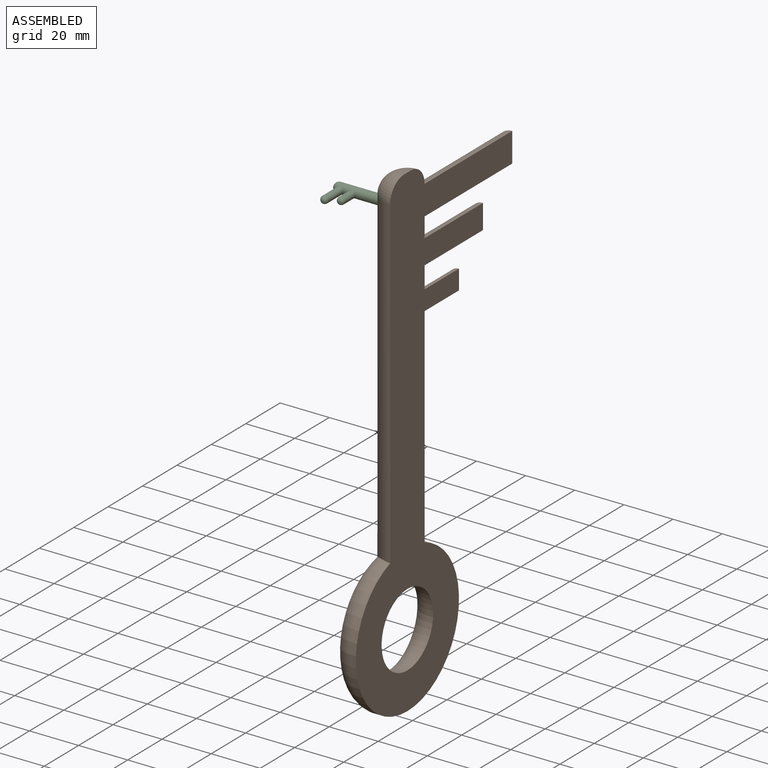
[diagram: assembled view]
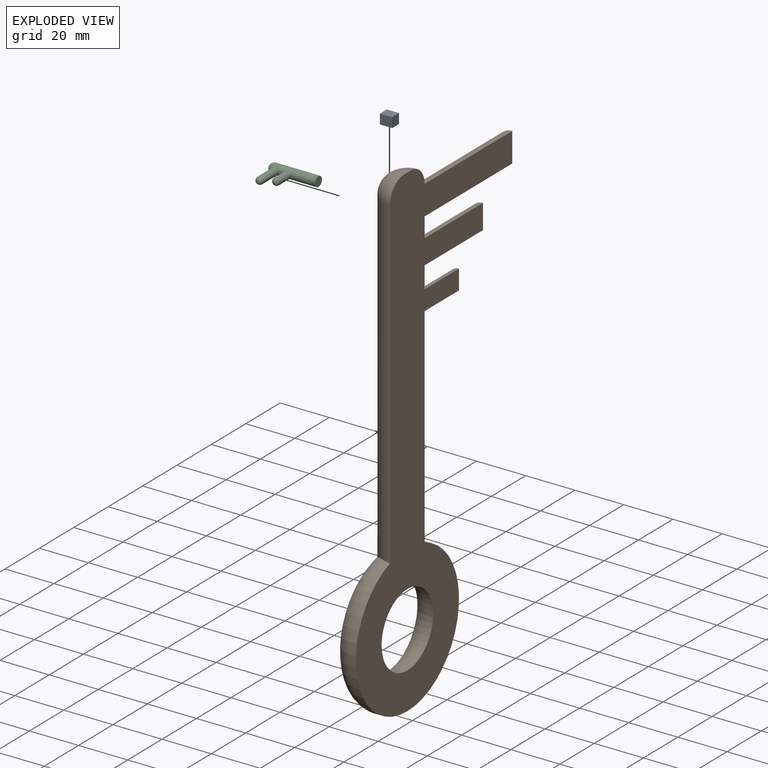
[diagram: exploded view]
GUIDED TOUR — MATED ASSEMBLY (Onshape document ddc536375253743c1de6924a, AutoMate assembly ddc536375253743c1de6924a_2603a5de249c5861ef21973a_51d18c4f5379fd14a775a0b7_default)

This assembly has 3 components, labeled P0..P2 below (a component is one placed occurrence of a part; the same part can appear more than once), held together by 2 mates. A mate is a constraint between two components; its type names the relative motion it leaves free:
  FASTENED — locks the two components together rigidly (no relative motion).
Axis/direction vectors are unit vectors and 'through' points are millimeter coordinates, both in the assembly's world frame.

MATES
  1. FASTENED "Fastened 2": P1 <-> P0, direction (-1.000, 0.000, 0.000) through (75.43, -0.76, 44.51) mm
  2. FASTENED "Fastened 1": P2 <-> P0, direction (1.000, 0.000, 0.000) through (68.63, -0.76, 44.51) mm

ASSEMBLY ORDER
  1. P1 — the base component [order verified]
  2. P0 [order verified]
  3. P2 [order verified]
Order-tag legend:
  [order verified] — this step's position reverses a verified removal order: the component was checked to insert without passing through the ones already placed.

Of the 3 components, 1 carries the full construction recipe — the FeatureScript program that regenerates the part's solid from scratch; the rest are supplied as boundary geometry only.
Each toured component is shown spotlighted twice — in the assembled view, then in the exploded view, where a leader line traces a displaced component back to its assembled socket (saturated green if recipe-attached, orange if geometry-only; every other component desaturated gray) — followed by its recipe or geometry summary and the mates that hold it.
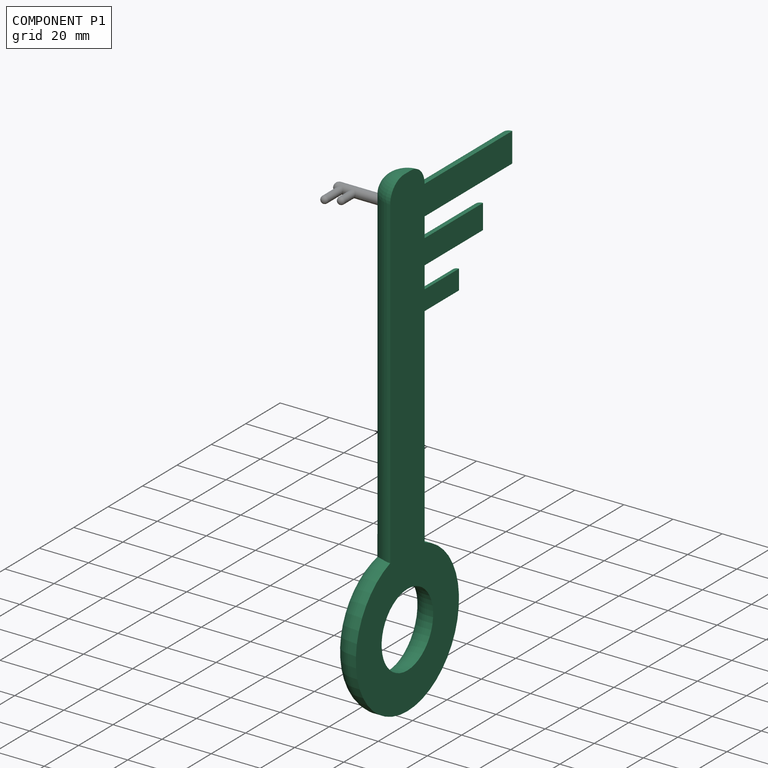
[diagram: component P1 — assembled]
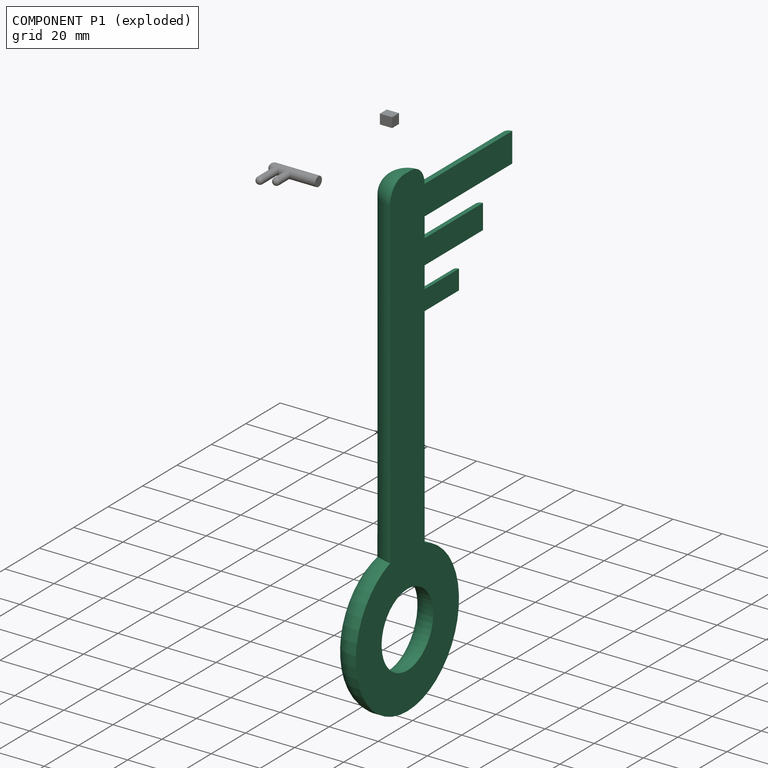
[diagram: component P1 — exploded]
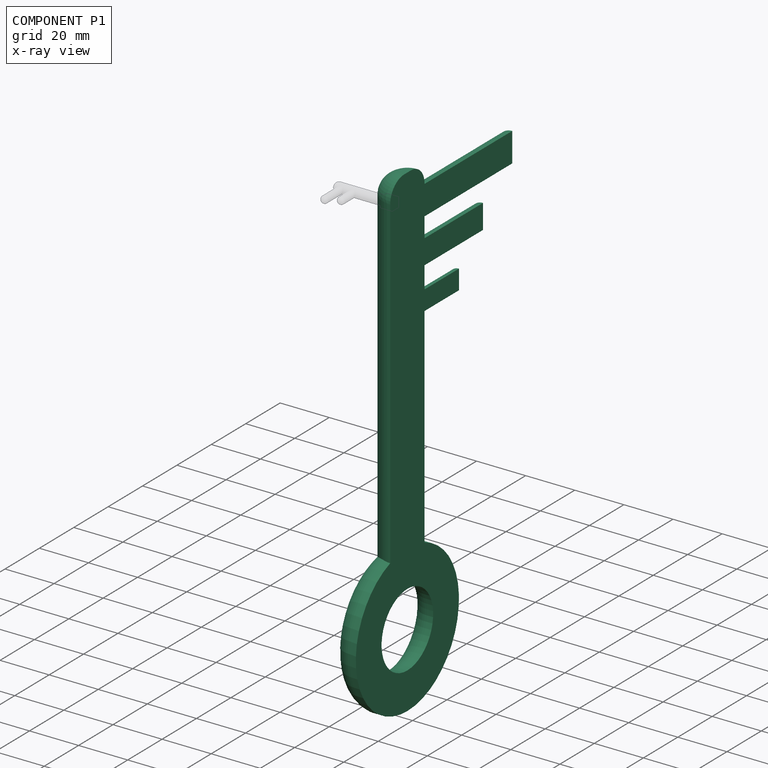
[diagram: component P1 — x-ray view]
COMPONENT P1 — recipe-attached (CADFS 00140303, mesh-verified: the recipe's output STEP matches this component's geometry to below the mesh-comparison resolution (tessellation chordal tolerance ~0.328 mm)).
Held by: FASTENED mate "Fastened 2" to P0.
Construction recipe (FeatureScript — the CAD program that rebuilds this solid; sketch coordinates are in the units given by the * unit suffixes, e.g. mm):

FeatureScript 1717;
import(path : "onshape/std/geometry.fs", version : "1717.0");
import(path : "onshape/std/common.fs", version : "1717.0");
const mm = millimeter;
const VERTEX = EntityType.VERTEX;
const EDGE = EntityType.EDGE;
const FACE = EntityType.FACE;
const BODY = EntityType.BODY;
function v(x, y){return vector(x, y);}
function OD(order){return orderDisambiguation(order);}
function OSD(set){return originalSetDisambiguation(set);}
function TD(topology){return topologyDisambiguation(topology);}
function TDD(query){return trueDependencyDisambiguation(query);}
function sQuery(a, b, c) {return sketchEntityQuery(a, b, c);}

annotation { "Feature Type Name" : "Feature", "Feature Type Description" : "" }
export const myFeature = defineFeature(function(context is Context, id is Id, definition is map)
    precondition{}
    {
        {
            var Q0;
            Q0=qCreatedBy(makeId("Top.planeOp"),FACE);
            var sketch = newSketch(context, id + "F0", { "sketchPlane" : qUnion([Q0])});
            skCircle(sketch, "E0", {"center": v(155.3, 0) * mm, "radius": 15 * mm});
            skCircle(sketch, "E1", {"center": v(155.3, 0) * mm, "radius": 30 * mm});
            skLineSegment(sketch, "E2", {"start": v(127.02, 10) * mm, "end": v(-12.98, 10) * mm});
            skLineSegment(sketch, "E3", {"start": v(-12.98, 10) * mm, "end": v(-12.98, -10) * mm});
            skPoint(sketch, "E4.first.point", {"position": v(185.3, 0) * mm});
            skLineSegment(sketch, "E5.bottom", {"start": v(-4.98, -10) * mm, "end": v(7.02, -10) * mm});
            skLineSegment(sketch, "E5.top", {"start": v(-4.98, -61) * mm, "end": v(7.02, -61) * mm});
            skLineSegment(sketch, "E5.left", {"start": v(-4.98, -10) * mm, "end": v(-4.98, -61) * mm});
            skLineSegment(sketch, "E5.right", {"start": v(7.02, -10) * mm, "end": v(7.02, -61) * mm});
            skLineSegment(sketch, "E6.bottom", {"start": v(15.02, -10) * mm, "end": v(25.02, -10) * mm});
            skLineSegment(sketch, "E6.top", {"start": v(15.02, -44) * mm, "end": v(25.02, -44) * mm});
            skLineSegment(sketch, "E6.left", {"start": v(15.02, -10) * mm, "end": v(15.02, -44) * mm});
            skLineSegment(sketch, "E6.right", {"start": v(25.02, -10) * mm, "end": v(25.02, -44) * mm});
            skLineSegment(sketch, "E7.bottom", {"start": v(-2.5, 2.5) * mm, "end": v(2.5, 2.5) * mm});
            skLineSegment(sketch, "E7.top", {"start": v(-2.5, -2.5) * mm, "end": v(2.5, -2.5) * mm});
            skLineSegment(sketch, "E7.left", {"start": v(-2.5, 2.5) * mm, "end": v(-2.5, -2.5) * mm});
            skLineSegment(sketch, "E7.right", {"start": v(2.5, 2.5) * mm, "end": v(2.5, -2.5) * mm});
            skPoint(sketch, "E7.middle", {"position": v(0, 0) * mm});
            skLineSegment(sketch, "E8.bottom", {"start": v(21.5, 2.5) * mm, "end": v(26.5, 2.5) * mm});
            skLineSegment(sketch, "E8.top", {"start": v(21.5, -2.5) * mm, "end": v(26.5, -2.5) * mm});
            skLineSegment(sketch, "E8.left", {"start": v(21.5, 2.5) * mm, "end": v(21.5, -2.5) * mm});
            skLineSegment(sketch, "E8.right", {"start": v(26.5, 2.5) * mm, "end": v(26.5, -2.5) * mm});
            skPoint(sketch, "E8.middle", {"position": v(24, 0) * mm});
            skLineSegment(sketch, "E9.bottom", {"start": v(45.5, 2.5) * mm, "end": v(50.5, 2.5) * mm});
            skLineSegment(sketch, "E9.top", {"start": v(45.5, -2.5) * mm, "end": v(50.5, -2.5) * mm});
            skLineSegment(sketch, "E9.left", {"start": v(45.5, 2.5) * mm, "end": v(45.5, -2.5) * mm});
            skLineSegment(sketch, "E9.right", {"start": v(50.5, 2.5) * mm, "end": v(50.5, -2.5) * mm});
            skPoint(sketch, "E9.middle", {"position": v(48, 0) * mm});
            skLineSegment(sketch, "E10.bottom", {"start": v(69.5, 2.5) * mm, "end": v(74.5, 2.5) * mm});
            skLineSegment(sketch, "E10.top", {"start": v(69.5, -2.5) * mm, "end": v(74.5, -2.5) * mm});
            skLineSegment(sketch, "E10.left", {"start": v(69.5, 2.5) * mm, "end": v(69.5, -2.5) * mm});
            skLineSegment(sketch, "E10.right", {"start": v(74.5, 2.5) * mm, "end": v(74.5, -2.5) * mm});
            skPoint(sketch, "E10.middle", {"position": v(72, 0) * mm});
            skLineSegment(sketch, "E11.bottom", {"start": v(93.5, 2.5) * mm, "end": v(98.5, 2.5) * mm});
            skLineSegment(sketch, "E11.top", {"start": v(93.5, -2.5) * mm, "end": v(98.5, -2.5) * mm});
            skLineSegment(sketch, "E11.left", {"start": v(93.5, 2.5) * mm, "end": v(93.5, -2.5) * mm});
            skLineSegment(sketch, "E11.right", {"start": v(98.5, 2.5) * mm, "end": v(98.5, -2.5) * mm});
            skPoint(sketch, "E11.middle", {"position": v(96, 0) * mm});
            skLineSegment(sketch, "E12.bottom", {"start": v(117.5, 2.5) * mm, "end": v(122.5, 2.5) * mm});
            skLineSegment(sketch, "E12.top", {"start": v(117.5, -2.5) * mm, "end": v(122.5, -2.5) * mm});
            skLineSegment(sketch, "E12.left", {"start": v(117.5, 2.5) * mm, "end": v(117.5, -2.5) * mm});
            skLineSegment(sketch, "E12.right", {"start": v(122.5, 2.5) * mm, "end": v(122.5, -2.5) * mm});
            skPoint(sketch, "E12.middle", {"position": v(120, 0) * mm});
            skLineSegment(sketch, "E13", {"start": v(-12.98, -10) * mm, "end": v(-4.98, -10) * mm});
            skLineSegment(sketch, "E14", {"start": v(7.02, -10) * mm, "end": v(15.02, -10) * mm});
            skLineSegment(sketch, "E15", {"start": v(25.02, -10) * mm, "end": v(33.87, -10) * mm});
            skLineSegment(sketch, "E16", {"start": v(33.87, -10) * mm, "end": v(33.87, -30) * mm});
            skLineSegment(sketch, "E17", {"start": v(33.87, -30) * mm, "end": v(41.87, -30) * mm});
            skLineSegment(sketch, "E18", {"start": v(41.87, -30) * mm, "end": v(41.87, -10) * mm});
            skLineSegment(sketch, "E19", {"start": v(41.87, -10) * mm, "end": v(127.02, -10) * mm});
            skLineSegment(sketch, "E20", {"start": v(33.87, -10) * mm, "end": v(41.87, -10) * mm});
            skSolve(sketch);
        }
        {
            var Q0;
            {var subQ5=sQuery(id+"F0.wireOp",EDGE,"E2");Q0=makeQuery(id+"F0.imprint","IMPRINT",FACE,{"disambiguationData":[TD([[makeQuery(id+"F0.imprint","IMPRINT",EDGE,{"derivedFrom":subQ5}),1.0]])]});}
            var Q1;
            Q1=makeQuery(id+"F0.imprint","IMPRINT",FACE,{"disambiguationData":[TD([[makeQuery(id+"F0.imprint","IMPRINT",EDGE,{"derivedFrom":sQuery(id+"F0.wireOp",EDGE,"E0")}),-1.0]])]});
            extrude(context, id + "F1", {"entities" : qUnion([Q0, Q1]), "depth" : 10 * mm});
        }
        {
            var Q0;
            Q0=makeQuery(id+"F0.imprint","IMPRINT",FACE,{"disambiguationData":[TD([[makeQuery(id+"F0.imprint","IMPRINT",EDGE,{"derivedFrom":sQuery(id+"F0.wireOp",EDGE,"E5.bottom")}),-1.0]])]});
            extrude(context, id + "F2", {"entities" : qUnion([Q0]), "operationType" : NewBodyOperationType.ADD, "depth" : 6 * mm});
        }
        {
            var Q0;
            Q0=makeQuery(id+"F0.imprint","IMPRINT",FACE,{"disambiguationData":[TD([[makeQuery(id+"F0.imprint","IMPRINT",EDGE,{"derivedFrom":sQuery(id+"F0.wireOp",EDGE,"E6.bottom")}),-1.0]])]});
            extrude(context, id + "F3", {"entities" : qUnion([Q0]), "operationType" : NewBodyOperationType.ADD, "depth" : 5 * mm});
        }
        {
            var Q0;
            Q0=makeQuery(id+"F0.imprint","IMPRINT",FACE,{"disambiguationData":[TD([[makeQuery(id+"F0.imprint","IMPRINT",EDGE,{"derivedFrom":sQuery(id+"F0.wireOp",EDGE,"E16")}),1.0]])]});
            extrude(context, id + "F4", {"entities" : qUnion([Q0]), "operationType" : NewBodyOperationType.ADD, "depth" : 4 * mm});
        }
        {
            var Q0;
            Q0=makeQuery(id+"F1.opExtrude","CAP_EDGE",EDGE,{"disambiguationData":[OSD([sQuery(id+"F0.wireOp",EDGE,"E1")])],"isStart":false});
            var Q1;
            Q1=makeQuery(id+"F1.opExtrude","CAP_EDGE",EDGE,{"disambiguationData":[OSD([sQuery(id+"F0.wireOp",EDGE,"E0")])],"isStart":false});
            fillet(context, id + "F5", {"entities" : qUnion([Q0, Q1]), "radius" : 7.5 * mm, "tangentPropagation" : true, "allowEdgeOverflow" : false});
        }
        {
            var Q0;
            Q0=makeQuery(id+"F2.opExtrude","CAP_EDGE",EDGE,{"disambiguationData":[OSD([sQuery(id+"F0.wireOp",EDGE,"E5.left")])],"isStart":false});
            var Q1;
            Q1=makeQuery(id+"F2.opExtrude","CAP_EDGE",EDGE,{"disambiguationData":[OSD([sQuery(id+"F0.wireOp",EDGE,"E5.right")])],"isStart":false});
            fillet(context, id + "F6", {"entities" : qUnion([Q0, Q1]), "radius" : 6 * mm, "tangentPropagation" : true, "allowEdgeOverflow" : false});
        }
        {
            var Q0;
            Q0=makeQuery(id+"F3.opExtrude","CAP_EDGE",EDGE,{"disambiguationData":[OSD([sQuery(id+"F0.wireOp",EDGE,"E6.right")])],"isStart":false});
            var Q1;
            Q1=makeQuery(id+"F3.opExtrude","CAP_EDGE",EDGE,{"disambiguationData":[OSD([sQuery(id+"F0.wireOp",EDGE,"E6.left")])],"isStart":false});
            fillet(context, id + "F7", {"entities" : qUnion([Q0, Q1]), "radius" : 5 * mm, "tangentPropagation" : true, "allowEdgeOverflow" : false});
        }
        {
            var Q0;
            Q0=makeQuery(id+"F4.opExtrude","CAP_EDGE",EDGE,{"disambiguationData":[OSD([sQuery(id+"F0.wireOp",EDGE,"E18")])],"isStart":false});
            var Q1;
            Q1=makeQuery(id+"F4.opExtrude","CAP_EDGE",EDGE,{"disambiguationData":[OSD([sQuery(id+"F0.wireOp",EDGE,"E16")])],"isStart":false});
            fillet(context, id + "F8", {"entities" : qUnion([Q0, Q1]), "radius" : 4 * mm, "tangentPropagation" : true, "allowEdgeOverflow" : false});
        }
        {
            var Q0;
            Q0=makeQuery(id+"F0.imprint","IMPRINT",FACE,{"disambiguationData":[TD([[makeQuery(id+"F0.imprint","IMPRINT",EDGE,{"derivedFrom":sQuery(id+"F0.wireOp",EDGE,"E7.bottom")}),-1.0]])]});
            var Q1;
            Q1=makeQuery(id+"F0.imprint","IMPRINT",FACE,{"disambiguationData":[TD([[makeQuery(id+"F0.imprint","IMPRINT",EDGE,{"derivedFrom":sQuery(id+"F0.wireOp",EDGE,"E8.bottom")}),-1.0]])]});
            var Q2;
            Q2=makeQuery(id+"F0.imprint","IMPRINT",FACE,{"disambiguationData":[TD([[makeQuery(id+"F0.imprint","IMPRINT",EDGE,{"derivedFrom":sQuery(id+"F0.wireOp",EDGE,"E9.bottom")}),-1.0]])]});
            var Q3;
            Q3=makeQuery(id+"F0.imprint","IMPRINT",FACE,{"disambiguationData":[TD([[makeQuery(id+"F0.imprint","IMPRINT",EDGE,{"derivedFrom":sQuery(id+"F0.wireOp",EDGE,"E10.bottom")}),-1.0]])]});
            var Q4;
            Q4=makeQuery(id+"F0.imprint","IMPRINT",FACE,{"disambiguationData":[TD([[makeQuery(id+"F0.imprint","IMPRINT",EDGE,{"derivedFrom":sQuery(id+"F0.wireOp",EDGE,"E11.bottom")}),-1.0]])]});
            var Q5;
            Q5=makeQuery(id+"F0.imprint","IMPRINT",FACE,{"disambiguationData":[TD([[makeQuery(id+"F0.imprint","IMPRINT",EDGE,{"derivedFrom":sQuery(id+"F0.wireOp",EDGE,"E12.bottom")}),-1.0]])]});
            extrude(context, id + "F9", {"entities" : qUnion([Q0, Q1, Q2, Q3, Q4, Q5]), "operationType" : NewBodyOperationType.ADD, "depth" : 3 * mm});
        }
        {
            var Q0;
            Q0=makeQuery(id+"F1.opExtrude","CAP_EDGE",EDGE,{"disambiguationData":[OSD([sQuery(id+"F0.wireOp",EDGE,"E2")])],"isStart":false});
            var Q1;
            Q1=makeQuery(id+"F1.opExtrude","CAP_EDGE",EDGE,{"disambiguationData":[OSD([sQuery(id+"F0.wireOp",EDGE,"E5.bottom"),sQuery(id+"F0.wireOp",EDGE,"E6.bottom"),sQuery(id+"F0.wireOp",EDGE,"E13"),sQuery(id+"F0.wireOp",EDGE,"E14"),sQuery(id+"F0.wireOp",EDGE,"E15"),sQuery(id+"F0.wireOp",EDGE,"E19"),sQuery(id+"F0.wireOp",EDGE,"E20")])],"isStart":false});
            fillet(context, id + "F10", {"entities" : qUnion([Q0, Q1]), "radius" : 10 * mm, "tangentPropagation" : true, "allowEdgeOverflow" : false});
        }
        {
            var Q0;
            Q0=makeQuery(id+"F10.opFillet","BLEND_EDGE",EDGE,{"blendedFrom":[makeQuery(id+"F1.opExtrude","CAP_EDGE",EDGE,{"disambiguationData":[OSD([sQuery(id+"F0.wireOp",EDGE,"E2")])],"isStart":false}),makeQuery(id+"F1.opExtrude","SWEPT_FACE",FACE,{"disambiguationData":[OSD([sQuery(id+"F0.wireOp",EDGE,"E3")])]})],"blendedInto":[makeQuery(id+"F1.opExtrude","SWEPT_FACE",FACE,{"disambiguationData":[OSD([sQuery(id+"F0.wireOp",EDGE,"E3")])]})]});
            fillet(context, id + "F11", {"entities" : qUnion([Q0]), "radius" : 8 * mm, "tangentPropagation" : true, "allowEdgeOverflow" : false});
        }
    });
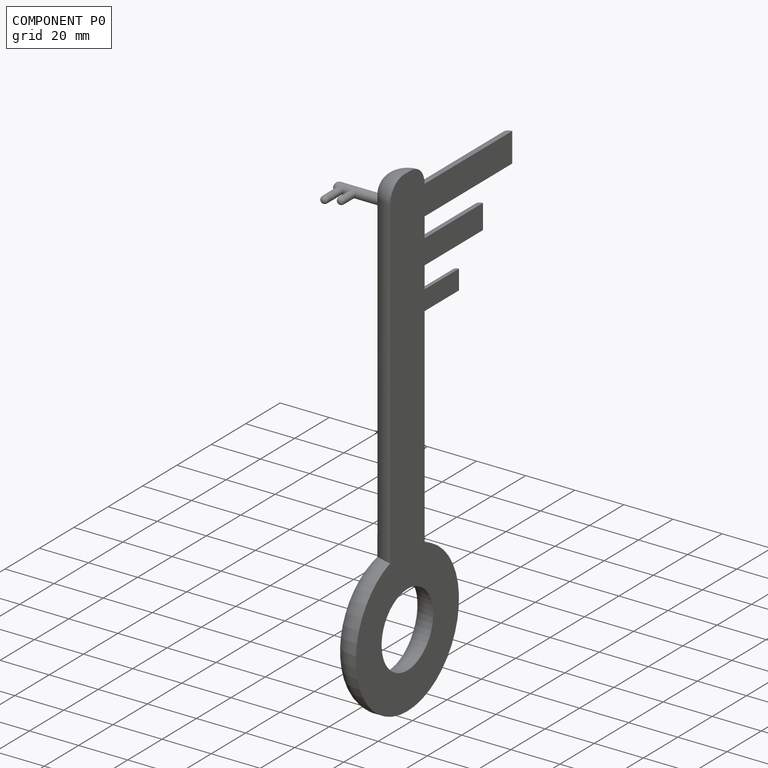
[diagram: component P0 — assembled]
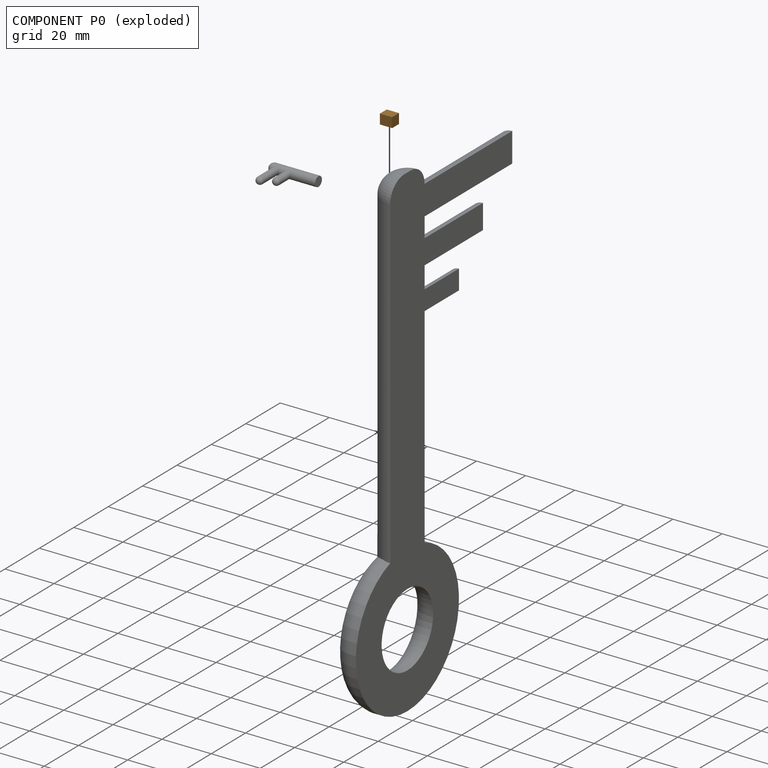
[diagram: component P0 — exploded]
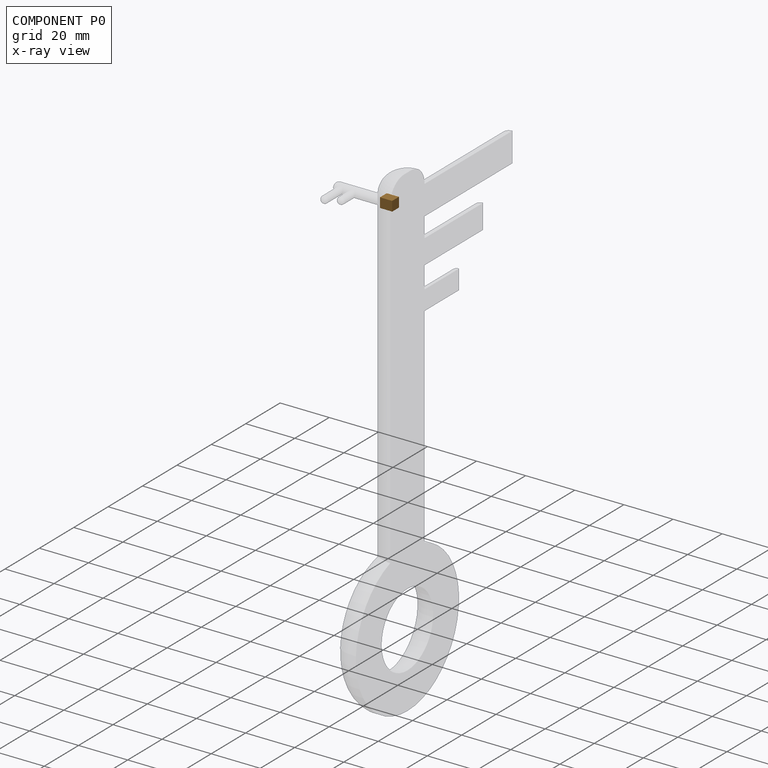
[diagram: component P0 — x-ray view]
COMPONENT P0 — geometry summary (no construction recipe available for this part):
  bounding box: 5.0 x 4.0 x 4.0 mm
  B-rep topology: 1 solid, 6 faces, 24 edges
  volume: 80 mm^3 (100% of its bounding box)
  symmetry: 4-fold rotationally symmetric about the x axis; 2-fold rotationally symmetric about the y axis; 2-fold rotationally symmetric about the z axis; mirror-symmetric across its x mid-plane, y mid-plane, z mid-plane
Held by: FASTENED mate "Fastened 2" to P1; FASTENED mate "Fastened 1" to P2.
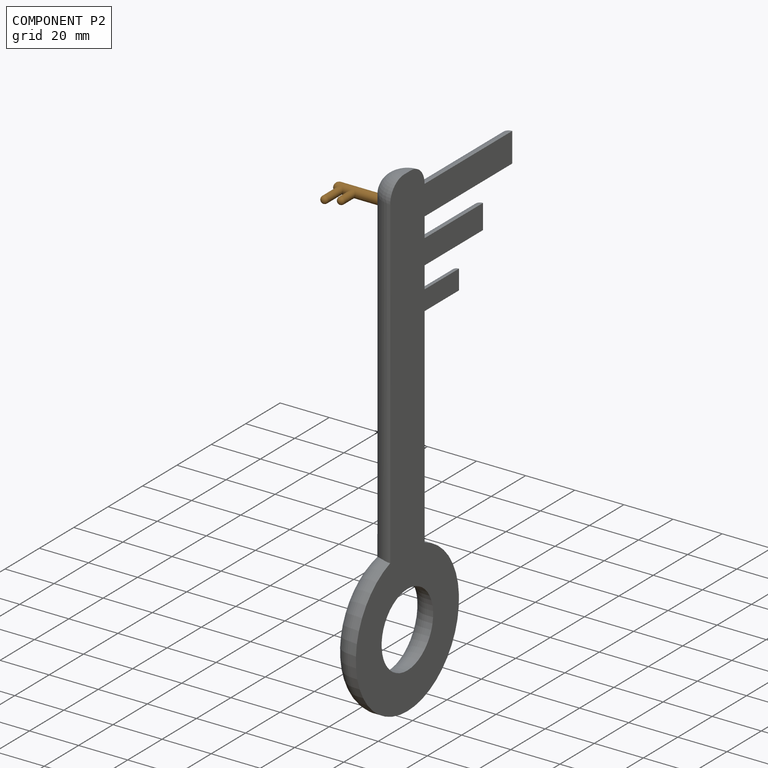
[diagram: component P2 — assembled]
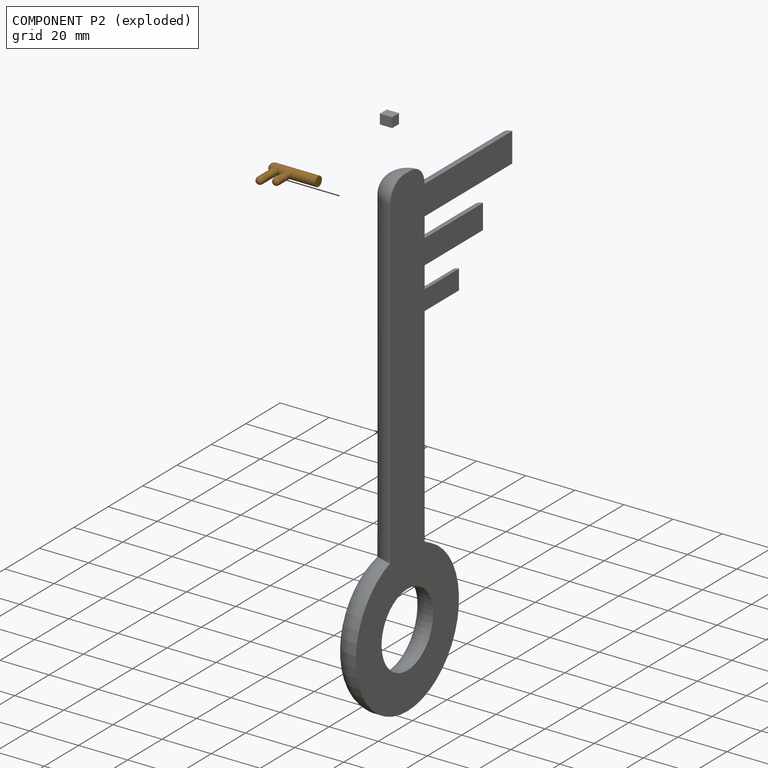
[diagram: component P2 — exploded]
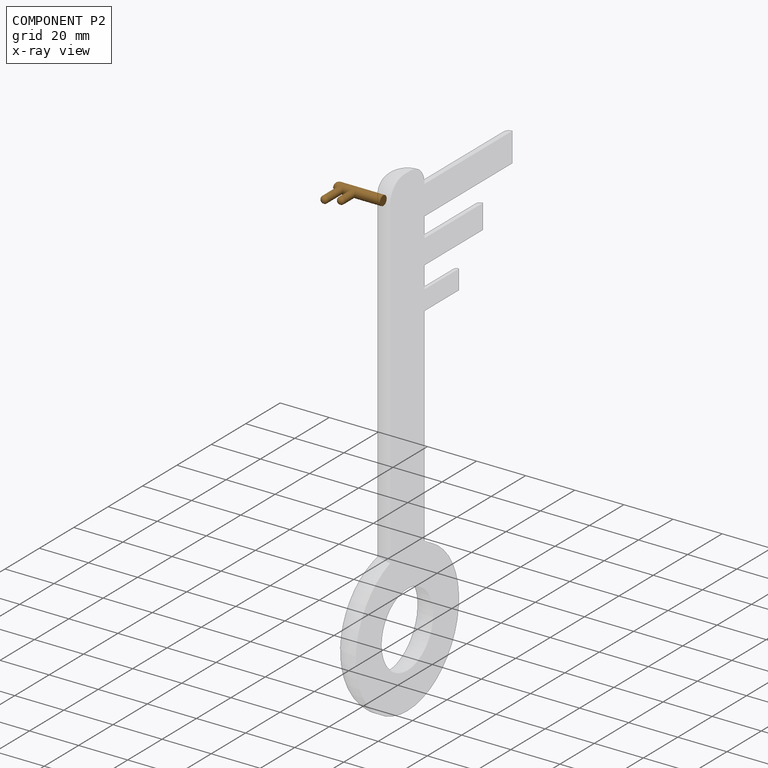
[diagram: component P2 — x-ray view]
COMPONENT P2 — geometry summary (no construction recipe available for this part):
  bounding box: 20.0 x 14.0 x 4.0 mm
  B-rep topology: 1 solid, 7 faces, 35 edges
  volume: 362 mm^3 (32% of its bounding box)
  symmetry: mirror-symmetric across its z mid-plane
Held by: FASTENED mate "Fastened 1" to P0.
PROVENANCE & LICENSES
Assembly (occurrences, transforms, mates, per-part STEP geometry): AutoMate dataset, Zenodo record 7776208, CC0.
Construction recipes: CADFS (HuggingFace VladPyatov/CADFS, CC-BY-4.0, layered over the ABC dataset), FeatureScript reconstruction programs keyed by ABC model id.
Join: ABC meta listings map ABC model id -> Onshape documentId; within a shared document, parts are matched by geometric signature (bounding-box dims + volume at 0.1% relative tolerance, exact B-rep face/solid counts).
Verification: 1 of this assembly's 3 components carries a recipe attachment, and every attachment is mesh-verified: the CADFS STEP and the AutoMate member STEP were compared as meshes in their shared local frame (symmetric sampled-point-to-mesh distance); worst across the 1 attachment: below the mesh-comparison resolution (tessellation chordal tolerance ~0.328 mm) on a 218 mm part.
Renders: orthographic iso camera (az 35 / el 25); the floor grid conveys scale (grid pitch printed in each image; no ruler). In the exploded view each component is displaced by its stored offset vector: the offsets alone carry the explosion direction (mate normal/axis signs are not orientation cues and do not encode it), and separation distances are assigned per mate-chain, not proportionally to assembly-order depth.
